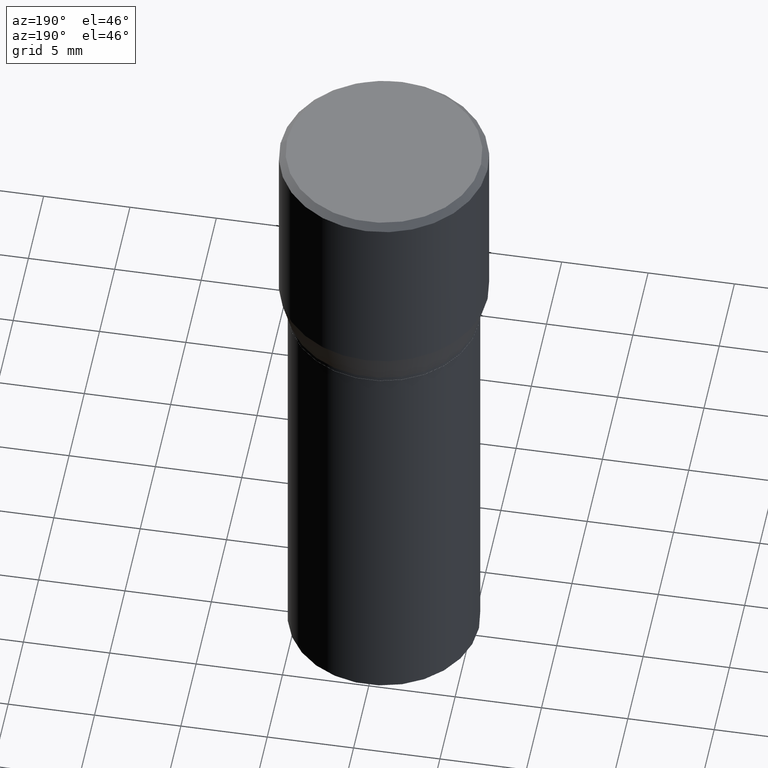
[diagram: clean part render]
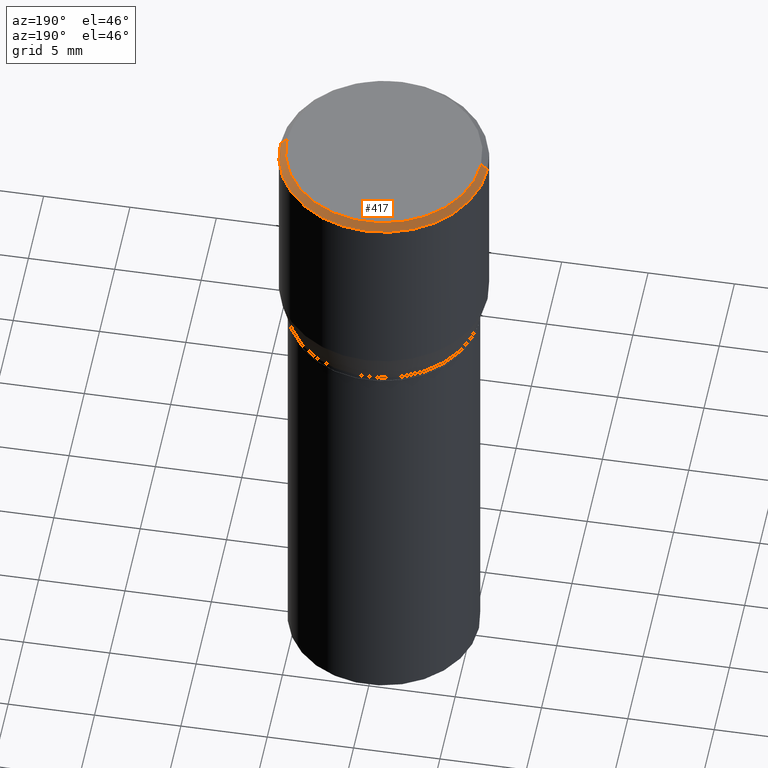
[diagram: same view with one face highlighted and labeled with its STEP entity id]
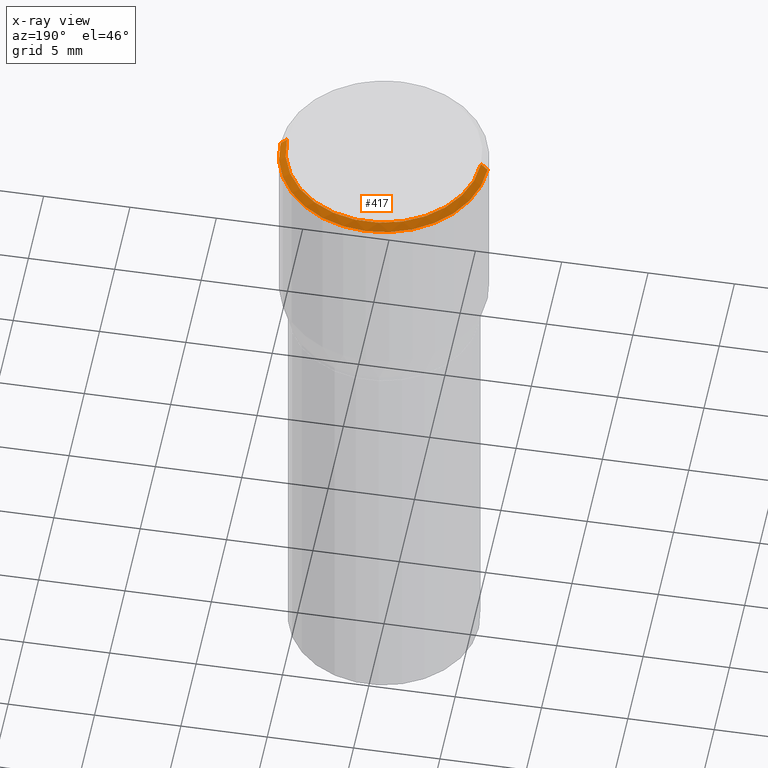
[diagram: x-ray of the same camera — body ghosted, the highlighted face saturated]
A machine part, auxiliary view. The second image highlights one B-rep face of the part: STEP entity #417.
The next image is the same camera in x-ray: the body ghosted, the highlighted face saturated — about 0% of this face is hidden behind the body in this view.
In plain terms, the highlighted conical surface has half-angle 45 deg.
Its self-contained STEP definition (entity closure, byte-faithful):
#15 = DIRECTION ( 'NONE',  ( 2.445468806185136597E-29, -3.491481338843145583E-15, -1.000000000000000000 ) ) ;
#18 = EDGE_CURVE ( 'NONE', #411, #199, #380, .T. ) ;
#29 = AXIS2_PLACEMENT_3D ( 'NONE', #452, #135, #422 ) ;
#30 = DIRECTION ( 'NONE',  ( 1.000000000000000000, -6.982962677686267499E-15, 4.877828720335458505E-29 ) ) ;
#43 = ORIENTED_EDGE ( 'NONE', *, *, #210, .T. ) ;
#89 = CARTESIAN_POINT ( 'NONE',  ( 0.2361999999999999933, -1.701748004552143407E-15, -0.01499999999999999944 ) ) ;
#94 = DIRECTION ( 'NONE',  ( 0.7071067811865459074, -7.319954787623251312E-15, -0.7071067811865492381 ) ) ;
#99 = CARTESIAN_POINT ( 'NONE',  ( 3.668203209277705088E-31, -5.237222008264718399E-17, -0.01499999999999999944 ) ) ;
#122 = CARTESIAN_POINT ( 'NONE',  ( -0.2361999999999999933, 8.973183152936629998E-16, -0.01499999999999999944 ) ) ;
#129 = ORIENTED_EDGE ( 'NONE', *, *, #198, .F. ) ;
#135 = DIRECTION ( 'NONE',  ( -2.445468806185136597E-29, 3.491481338843145583E-15, 1.000000000000000000 ) ) ;
#142 = CARTESIAN_POINT ( 'NONE',  ( -0.2212000000000000077, 1.570817454345525709E-15, 4.701447564591266586E-17 ) ) ;
#162 = AXIS2_PLACEMENT_3D ( 'NONE', #351, #211, #30 ) ;
#172 = CIRCLE ( 'NONE', #29, 0.2361999999999999933 ) ;
#176 = CARTESIAN_POINT ( 'NONE',  ( -0.2361999999999999933, 1.597003564386848854E-15, -0.01499999999999999944 ) ) ;
#198 = EDGE_CURVE ( 'NONE', #199, #261, #247, .T. ) ;
#199 = VERTEX_POINT ( 'NONE', #142 ) ;
#210 = EDGE_CURVE ( 'NONE', #344, #261, #172, .T. ) ;
#211 = DIRECTION ( 'NONE',  ( -2.445468806185136597E-29, 3.491481338843145583E-15, 1.000000000000000000 ) ) ;
#217 = CONICAL_SURFACE ( 'NONE', #293, 0.2361999999999999933, 0.7853981633974459475 ) ;
#246 = VECTOR ( 'NONE', #390, 39.37007874015748143 ) ;
#247 = LINE ( 'NONE', #176, #246 ) ;
#261 = VERTEX_POINT ( 'NONE', #122 ) ;
#266 = LINE ( 'NONE', #410, #382 ) ;
#270 = ORIENTED_EDGE ( 'NONE', *, *, #412, .T. ) ;
#293 = AXIS2_PLACEMENT_3D ( 'NONE', #99, #15, #304 ) ;
#304 = DIRECTION ( 'NONE',  ( -1.000000000000000000, 6.982962677686266711E-15, 0.000000000000000000 ) ) ;
#307 = ORIENTED_EDGE ( 'NONE', *, *, #18, .F. ) ;
#341 = FACE_OUTER_BOUND ( 'NONE', #445, .T. ) ;
#344 = VERTEX_POINT ( 'NONE', #89 ) ;
#351 = CARTESIAN_POINT ( 'NONE',  ( -1.149724336312568861E-45, 1.641501643732376549E-31, 4.701447564592356200E-17 ) ) ;
#380 = CIRCLE ( 'NONE', #162, 0.2212000000000000077 ) ;
#382 = VECTOR ( 'NONE', #94, 39.37007874015748143 ) ;
#390 = DIRECTION ( 'NONE',  ( -0.7071067811865459074, 2.468850131082239706E-15, -0.7071067811865492381 ) ) ;
#410 = CARTESIAN_POINT ( 'NONE',  ( 0.2361999999999999933, -1.672821847156282947E-15, -0.01499999999999999944 ) ) ;
#411 = VERTEX_POINT ( 'NONE', #444 ) ;
#412 = EDGE_CURVE ( 'NONE', #411, #344, #266, .T. ) ;
#417 = ADVANCED_FACE ( 'NONE', ( #341 ), #217, .T. ) ;
#422 = DIRECTION ( 'NONE',  ( 1.000000000000000000, -6.982962677686266711E-15, 0.000000000000000000 ) ) ;
#444 = CARTESIAN_POINT ( 'NONE',  ( 0.2212000000000000077, -1.595182002131672613E-15, 4.701447564593453826E-17 ) ) ;
#445 = EDGE_LOOP ( 'NONE', ( #307, #270, #43, #129 ) ) ;
#452 = CARTESIAN_POINT ( 'NONE',  ( 3.668203209277705088E-31, -5.237222008264718399E-17, -0.01499999999999999944 ) ) ;